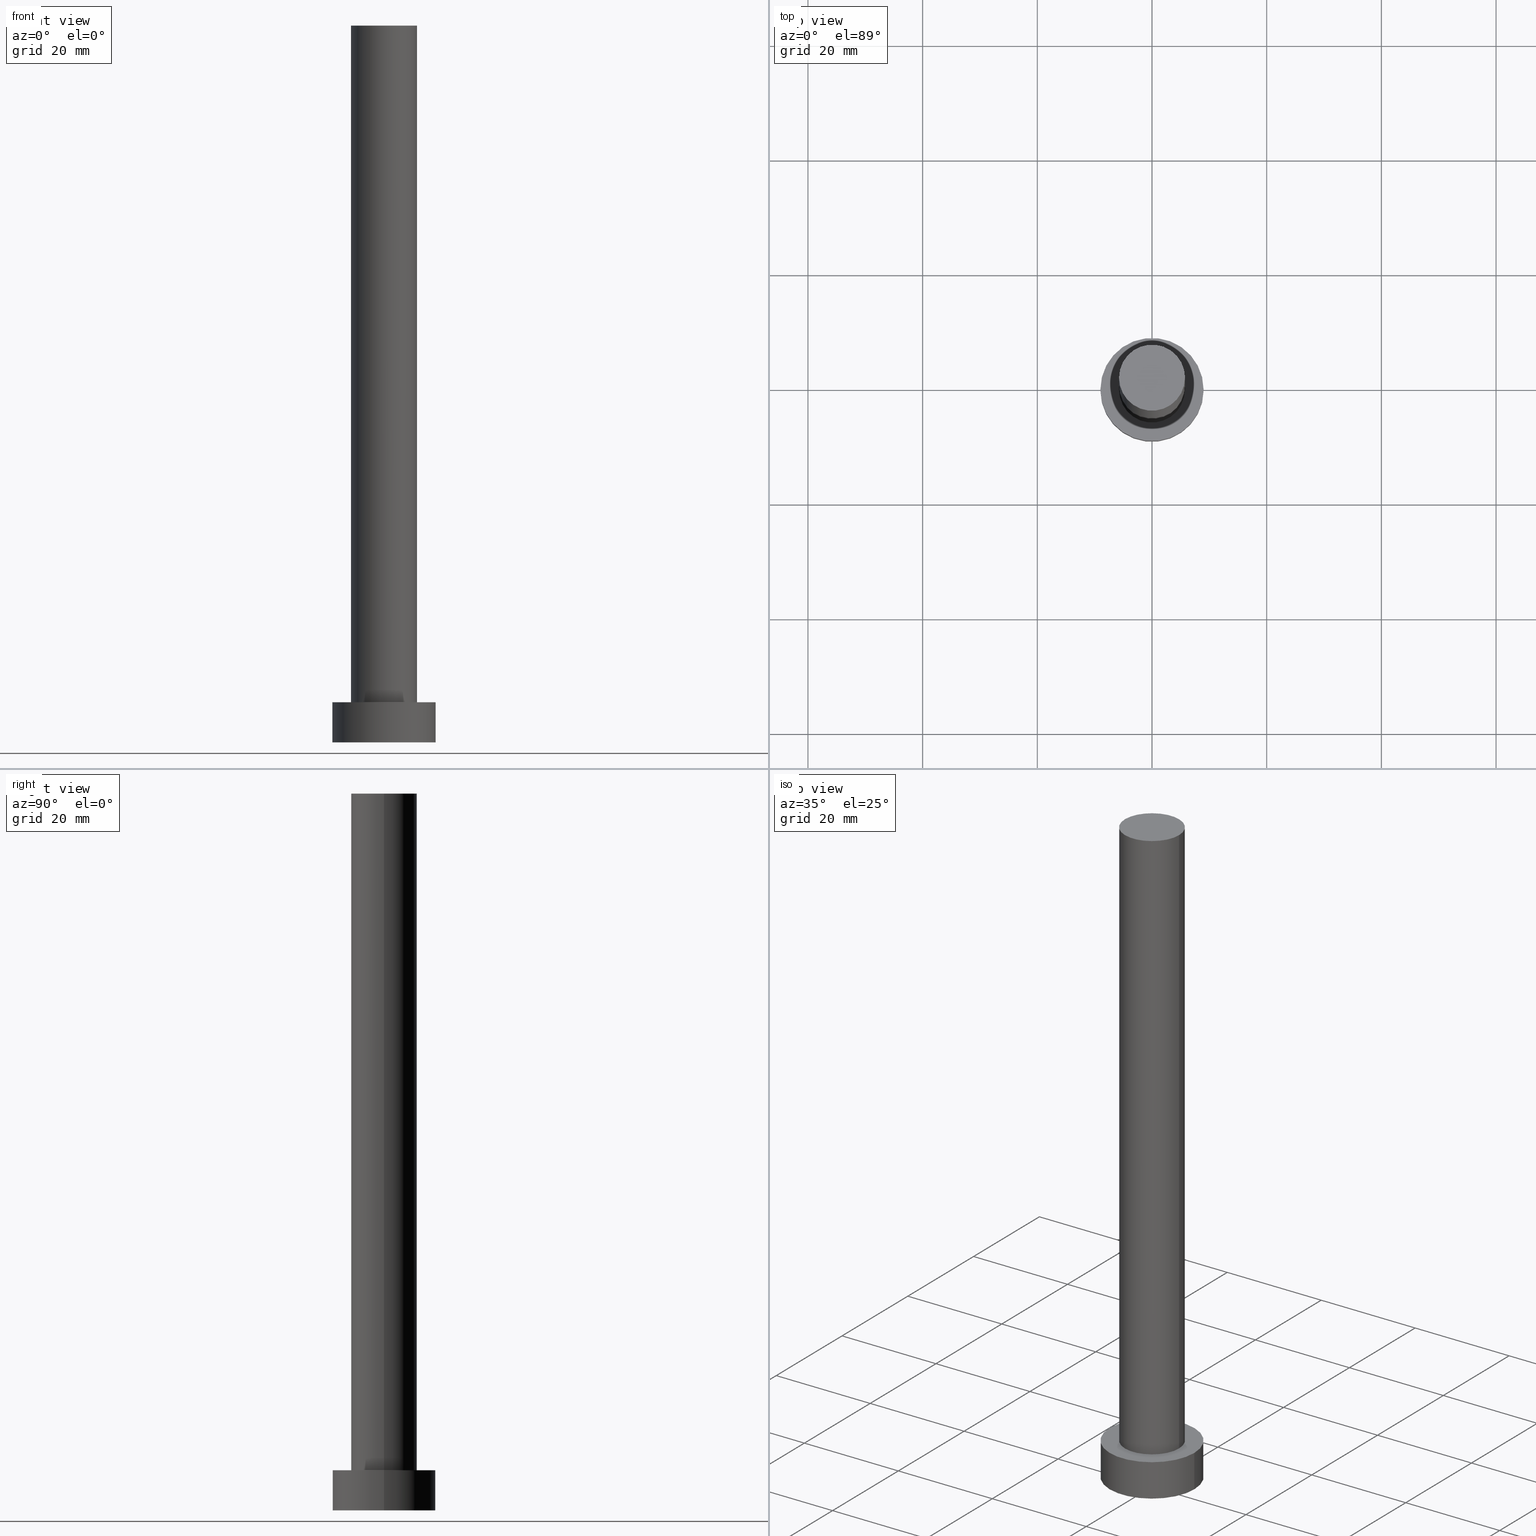
[diagram: canonical four-view strip — front | top / right | iso, engineering-drawing reading convention]
A machine part, canonical four-view strip (front | top / right | iso — engineering-drawing reading convention). The complete STEP part file that produces these views, byte-faithful:
ISO-10303-21;
HEADER;
FILE_DESCRIPTION (( 'STEP AP203' ),
    '1' );
FILE_NAME ('5398.STEP',
    '2023-02-13T12:27:50',
    ( '' ),
    ( '' ),
    'SwSTEP 2.0',
    'SolidWorks 2019',
    '' );
FILE_SCHEMA (( 'CONFIG_CONTROL_DESIGN' ));
ENDSEC;

DATA;
#1 = ORIENTED_EDGE ( 'NONE', *, *, #217, .F. ) ;
#2 = ORIENTED_EDGE ( 'NONE', *, *, #125, .F. ) ;
#3 = CC_DESIGN_APPROVAL ( #16, ( #165 ) ) ;
#4 = EDGE_CURVE ( 'NONE', #95, #42, #116, .T. ) ;
#5 = ORIENTED_EDGE ( 'NONE', *, *, #4, .F. ) ;
#6 = ORIENTED_EDGE ( 'NONE', *, *, #227, .F. ) ;
#7 = PERSON_AND_ORGANIZATION ( #240, #174 ) ;
#8 = AXIS2_PLACEMENT_3D ( 'NONE', #100, #10, #167 ) ;
#9 = AXIS2_PLACEMENT_3D ( 'NONE', #80, #160, #56 ) ;
#10 = DIRECTION ( 'NONE',  ( 0.000000000000000000, 0.000000000000000000, 1.000000000000000000 ) ) ;
#11 = DIRECTION ( 'NONE',  ( 1.000000000000000000, 0.000000000000000000, 0.000000000000000000 ) ) ;
#12 = EDGE_CURVE ( 'NONE', #146, #132, #203, .T. ) ;
#13 = CYLINDRICAL_SURFACE ( 'NONE', #236, 9.000000000000000000 ) ;
#14 = CC_DESIGN_DATE_AND_TIME_ASSIGNMENT ( #87, #179, ( #39 ) ) ;
#15 = COORDINATED_UNIVERSAL_TIME_OFFSET ( 1, 0, .AHEAD. ) ;
#16 = APPROVAL ( #208, 'NEUR�EN�' ) ;
#17 = DIRECTION ( 'NONE',  ( 1.000000000000000000, 0.000000000000000000, 0.000000000000000000 ) ) ;
#18 = CARTESIAN_POINT ( 'NONE',  ( 9.000000000000000000, 1.102182119232617714E-15, 0.000000000000000000 ) ) ;
#19 = ADVANCED_FACE ( 'NONE', ( #140 ), #13, .T. ) ;
#20 = CIRCLE ( 'NONE', #180, 5.750000000000000000 ) ;
#21 = VERTEX_POINT ( 'NONE', #156 ) ;
#22 = EDGE_LOOP ( 'NONE', ( #161, #5, #44, #65 ) ) ;
#23 = PERSON_AND_ORGANIZATION ( #240, #174 ) ;
#24 = ADVANCED_FACE ( 'NONE', ( #229 ), #207, .T. ) ;
#25 = DIRECTION ( 'NONE',  ( 1.000000000000000000, 0.000000000000000000, 0.000000000000000000 ) ) ;
#26 = CARTESIAN_POINT ( 'NONE',  ( 0.000000000000000000, 0.000000000000000000, 0.000000000000000000 ) ) ;
#27 = DIRECTION ( 'NONE',  ( -0.000000000000000000, -0.000000000000000000, -1.000000000000000000 ) ) ;
#28 = AXIS2_PLACEMENT_3D ( 'NONE', #77, #209, #48 ) ;
#29 = DIRECTION ( 'NONE',  ( -0.000000000000000000, -0.000000000000000000, -1.000000000000000000 ) ) ;
#30 = DIRECTION ( 'NONE',  ( 1.000000000000000000, 0.000000000000000000, -0.000000000000000000 ) ) ;
#31 = AXIS2_PLACEMENT_3D ( 'NONE', #235, #215, #43 ) ;
#32 = APPROVAL_ROLE ( '' ) ;
#33 = DIRECTION ( 'NONE',  ( -0.000000000000000000, -0.000000000000000000, -1.000000000000000000 ) ) ;
#34 = PERSON_AND_ORGANIZATION_ROLE ( 'design_supplier' ) ;
#35 = CC_DESIGN_DATE_AND_TIME_ASSIGNMENT ( #164, #99, ( #165 ) ) ;
#36 = DIRECTION ( 'NONE',  ( -0.000000000000000000, -0.000000000000000000, -1.000000000000000000 ) ) ;
#37 = PLANE ( 'NONE',  #115 ) ;
#38 = FACE_BOUND ( 'NONE', #166, .T. ) ;
#39 = PRODUCT_DEFINITION ( 'NEZN�M�', '', #237, #97 ) ;
#40 = PRODUCT_DEFINITION_SHAPE ( 'NONE', 'NONE',  #39 ) ;
#41 = AXIS2_PLACEMENT_3D ( 'NONE', #101, #244, #76 ) ;
#42 = VERTEX_POINT ( 'NONE', #242 ) ;
#43 = DIRECTION ( 'NONE',  ( 1.000000000000000000, 0.000000000000000000, 0.000000000000000000 ) ) ;
#44 = ORIENTED_EDGE ( 'NONE', *, *, #255, .T. ) ;
#45 = ADVANCED_FACE ( 'NONE', ( #114 ), #155, .T. ) ;
#46 = COORDINATED_UNIVERSAL_TIME_OFFSET ( 1, 0, .AHEAD. ) ;
#47 = ORIENTED_EDGE ( 'NONE', *, *, #122, .F. ) ;
#48 = DIRECTION ( 'NONE',  ( 1.000000000000000000, 0.000000000000000000, 0.000000000000000000 ) ) ;
#49 = DIRECTION ( 'NONE',  ( -0.000000000000000000, -0.000000000000000000, -1.000000000000000000 ) ) ;
#50 = PERSON_AND_ORGANIZATION ( #240, #174 ) ;
#51 =( NAMED_UNIT ( * ) SI_UNIT ( $, .STERADIAN. ) SOLID_ANGLE_UNIT ( ) );
#52 = CARTESIAN_POINT ( 'NONE',  ( 0.000000000000000000, 0.000000000000000000, 125.0000000000000000 ) ) ;
#53 = AXIS2_PLACEMENT_3D ( 'NONE', #104, #27, #117 ) ;
#54 = PERSON_AND_ORGANIZATION_ROLE ( 'creator' ) ;
#55 = VECTOR ( 'NONE', #33, 1000.000000000000000 ) ;
#56 = DIRECTION ( 'NONE',  ( 1.000000000000000000, 0.000000000000000000, -0.000000000000000000 ) ) ;
#57 = APPROVAL_DATE_TIME ( #81, #220 ) ;
#58 = CARTESIAN_POINT ( 'NONE',  ( 0.000000000000000000, 0.000000000000000000, 0.000000000000000000 ) ) ;
#59 = APPLICATION_CONTEXT ( 'configuration controlled 3d designs of mechanical parts and assemblies' ) ;
#60 = CARTESIAN_POINT ( 'NONE',  ( 0.000000000000000000, 0.000000000000000000, 7.000000000000000000 ) ) ;
#61 = PERSON_AND_ORGANIZATION_ROLE ( 'creator' ) ;
#62 = EDGE_CURVE ( 'NONE', #42, #147, #188, .T. ) ;
#63 = APPROVAL_STATUS ( 'not_yet_approved' ) ;
#64 = CC_DESIGN_PERSON_AND_ORGANIZATION_ASSIGNMENT ( #232, #61, ( #39 ) ) ;
#65 = ORIENTED_EDGE ( 'NONE', *, *, #217, .T. ) ;
#66 = ORIENTED_EDGE ( 'NONE', *, *, #12, .F. ) ;
#67 = ORIENTED_EDGE ( 'NONE', *, *, #94, .T. ) ;
#68 = ORIENTED_EDGE ( 'NONE', *, *, #142, .F. ) ;
#69 = AXIS2_PLACEMENT_3D ( 'NONE', #200, #216, #25 ) ;
#70 =( GEOMETRIC_REPRESENTATION_CONTEXT ( 3 ) GLOBAL_UNCERTAINTY_ASSIGNED_CONTEXT ( ( #186 ) ) GLOBAL_UNIT_ASSIGNED_CONTEXT ( ( #190, #102, #51 ) ) REPRESENTATION_CONTEXT ( 'NONE', 'WORKASPACE' ) );
#71 = PERSON_AND_ORGANIZATION_ROLE ( 'design_owner' ) ;
#72 = ORIENTED_EDGE ( 'NONE', *, *, #73, .T. ) ;
#73 = EDGE_CURVE ( 'NONE', #147, #90, #124, .T. ) ;
#74 = CARTESIAN_POINT ( 'NONE',  ( -9.000000000000000000, 0.000000000000000000, 0.000000000000000000 ) ) ;
#75 = CC_DESIGN_APPROVAL ( #220, ( #237 ) ) ;
#76 = DIRECTION ( 'NONE',  ( 1.000000000000000000, 0.000000000000000000, 0.000000000000000000 ) ) ;
#77 = CARTESIAN_POINT ( 'NONE',  ( 0.000000000000000000, 0.000000000000000000, 7.000000000000000000 ) ) ;
#78 = CIRCLE ( 'NONE', #248, 5.750000000000000000 ) ;
#79 = AXIS2_PLACEMENT_3D ( 'NONE', #26, #205, #30 ) ;
#80 = CARTESIAN_POINT ( 'NONE',  ( 0.000000000000000000, 0.000000000000000000, 125.0000000000000000 ) ) ;
#81 = DATE_AND_TIME ( #250, #159 ) ;
#82 = CC_DESIGN_PERSON_AND_ORGANIZATION_ASSIGNMENT ( #50, #54, ( #237 ) ) ;
#83 = APPROVAL_STATUS ( 'not_yet_approved' ) ;
#84 = MECHANICAL_CONTEXT ( 'NONE', #171, 'mechanical' ) ;
#85 = CARTESIAN_POINT ( 'NONE',  ( -5.750000000000000000, 0.000000000000000000, 125.0000000000000000 ) ) ;
#86 = APPROVAL_ROLE ( '' ) ;
#87 = DATE_AND_TIME ( #212, #191 ) ;
#88 = ORIENTED_EDGE ( 'NONE', *, *, #125, .T. ) ;
#89 = APPROVAL_PERSON_ORGANIZATION ( #139, #16, #32 ) ;
#90 = VERTEX_POINT ( 'NONE', #74 ) ;
#91 = VECTOR ( 'NONE', #49, 1000.000000000000000 ) ;
#92 = CALENDAR_DATE ( 2023, 13, 2 ) ;
#93 = VERTEX_POINT ( 'NONE', #169 ) ;
#94 = EDGE_CURVE ( 'NONE', #42, #95, #157, .T. ) ;
#95 = VERTEX_POINT ( 'NONE', #153 ) ;
#96 = ORIENTED_EDGE ( 'NONE', *, *, #73, .F. ) ;
#97 = DESIGN_CONTEXT ( 'detailed design', #59, 'design' ) ;
#98 = LOCAL_TIME ( 13, 27, 50.00000000000000000, #15 ) ;
#99 = DATE_TIME_ROLE ( 'classification_date' ) ;
#100 = CARTESIAN_POINT ( 'NONE',  ( 0.000000000000000000, 0.000000000000000000, 0.000000000000000000 ) ) ;
#101 = CARTESIAN_POINT ( 'NONE',  ( 0.000000000000000000, 0.000000000000000000, 7.000000000000000000 ) ) ;
#102 =( NAMED_UNIT ( * ) PLANE_ANGLE_UNIT ( ) SI_UNIT ( $, .RADIAN. ) );
#103 = DIRECTION ( 'NONE',  ( -1.000000000000000000, 0.000000000000000000, 0.000000000000000000 ) ) ;
#104 = CARTESIAN_POINT ( 'NONE',  ( 0.000000000000000000, 0.000000000000000000, 125.0000000000000000 ) ) ;
#105 = DATE_AND_TIME ( #247, #98 ) ;
#106 = SHAPE_DEFINITION_REPRESENTATION ( #40, #211 ) ;
#107 = APPROVAL_DATE_TIME ( #253, #113 ) ;
#108 = APPLICATION_PROTOCOL_DEFINITION ( 'international standard', 'config_control_design', 1994, #171 ) ;
#109 = COORDINATED_UNIVERSAL_TIME_OFFSET ( 1, 0, .AHEAD. ) ;
#110 = MANIFOLD_SOLID_BREP ( 'P�idat vysunut�m3', #218 ) ;
#111 = EDGE_LOOP ( 'NONE', ( #68, #47, #126, #88 ) ) ;
#112 = ORIENTED_EDGE ( 'NONE', *, *, #224, .F. ) ;
#113 = APPROVAL ( #83, 'NEUR�EN�' ) ;
#114 = FACE_OUTER_BOUND ( 'NONE', #181, .T. ) ;
#115 = AXIS2_PLACEMENT_3D ( 'NONE', #193, #249, #230 ) ;
#116 = CIRCLE ( 'NONE', #31, 9.000000000000000000 ) ;
#117 = DIRECTION ( 'NONE',  ( -1.000000000000000000, 0.000000000000000000, 0.000000000000000000 ) ) ;
#118 = DIRECTION ( 'NONE',  ( -1.000000000000000000, 0.000000000000000000, 0.000000000000000000 ) ) ;
#119 = LOCAL_TIME ( 13, 27, 50.00000000000000000, #252 ) ;
#120 = FACE_OUTER_BOUND ( 'NONE', #150, .T. ) ;
#121 = COORDINATED_UNIVERSAL_TIME_OFFSET ( 1, 0, .AHEAD. ) ;
#122 = EDGE_CURVE ( 'NONE', #132, #146, #78, .T. ) ;
#123 = PERSON_AND_ORGANIZATION ( #240, #174 ) ;
#124 = CIRCLE ( 'NONE', #8, 9.000000000000000000 ) ;
#125 = EDGE_CURVE ( 'NONE', #21, #93, #144, .T. ) ;
#126 = ORIENTED_EDGE ( 'NONE', *, *, #224, .T. ) ;
#127 = ORIENTED_EDGE ( 'NONE', *, *, #122, .T. ) ;
#128 = ORIENTED_EDGE ( 'NONE', *, *, #142, .T. ) ;
#129 = CC_DESIGN_PERSON_AND_ORGANIZATION_ASSIGNMENT ( #7, #71, ( #176 ) ) ;
#130 = ORIENTED_EDGE ( 'NONE', *, *, #227, .T. ) ;
#131 = DIRECTION ( 'NONE',  ( 0.000000000000000000, 0.000000000000000000, 1.000000000000000000 ) ) ;
#132 = VERTEX_POINT ( 'NONE', #134 ) ;
#133 = PERSON_AND_ORGANIZATION ( #240, #174 ) ;
#134 = CARTESIAN_POINT ( 'NONE',  ( -5.750000000000000000, 0.000000000000000000, 125.0000000000000000 ) ) ;
#135 = AXIS2_PLACEMENT_3D ( 'NONE', #58, #141, #17 ) ;
#136 = CARTESIAN_POINT ( 'NONE',  ( 0.000000000000000000, 0.000000000000000000, 7.000000000000000000 ) ) ;
#137 = LINE ( 'NONE', #206, #202 ) ;
#138 = FACE_OUTER_BOUND ( 'NONE', #184, .T. ) ;
#139 = PERSON_AND_ORGANIZATION ( #240, #174 ) ;
#140 = FACE_OUTER_BOUND ( 'NONE', #185, .T. ) ;
#141 = DIRECTION ( 'NONE',  ( 0.000000000000000000, 0.000000000000000000, 1.000000000000000000 ) ) ;
#142 = EDGE_CURVE ( 'NONE', #146, #93, #137, .T. ) ;
#143 = CC_DESIGN_PERSON_AND_ORGANIZATION_ASSIGNMENT ( #23, #34, ( #237 ) ) ;
#144 = CIRCLE ( 'NONE', #28, 5.750000000000000000 ) ;
#145 = LOCAL_TIME ( 13, 27, 50.00000000000000000, #46 ) ;
#146 = VERTEX_POINT ( 'NONE', #173 ) ;
#147 = VERTEX_POINT ( 'NONE', #18 ) ;
#148 = PERSON_AND_ORGANIZATION_ROLE ( 'classification_officer' ) ;
#149 = AXIS2_PLACEMENT_3D ( 'NONE', #152, #241, #192 ) ;
#150 = EDGE_LOOP ( 'NONE', ( #199, #67 ) ) ;
#151 = PRODUCT_RELATED_PRODUCT_CATEGORY ( 'detail', '', ( #176 ) ) ;
#152 = CARTESIAN_POINT ( 'NONE',  ( 0.000000000000000000, 0.000000000000000000, 0.000000000000000000 ) ) ;
#153 = CARTESIAN_POINT ( 'NONE',  ( -9.000000000000000000, 0.000000000000000000, 7.000000000000000000 ) ) ;
#154 = DIRECTION ( 'NONE',  ( -0.000000000000000000, -0.000000000000000000, -1.000000000000000000 ) ) ;
#155 = CYLINDRICAL_SURFACE ( 'NONE', #228, 5.750000000000000000 ) ;
#156 = CARTESIAN_POINT ( 'NONE',  ( -5.750000000000000000, 0.000000000000000000, 7.000000000000000000 ) ) ;
#157 = CIRCLE ( 'NONE', #41, 9.000000000000000000 ) ;
#158 = PERSON_AND_ORGANIZATION ( #240, #174 ) ;
#159 = LOCAL_TIME ( 13, 27, 50.00000000000000000, #109 ) ;
#160 = DIRECTION ( 'NONE',  ( 0.000000000000000000, 0.000000000000000000, 1.000000000000000000 ) ) ;
#161 = ORIENTED_EDGE ( 'NONE', *, *, #62, .F. ) ;
#162 = CIRCLE ( 'NONE', #135, 9.000000000000000000 ) ;
#163 = ORIENTED_EDGE ( 'NONE', *, *, #94, .F. ) ;
#164 = DATE_AND_TIME ( #92, #145 ) ;
#165 = SECURITY_CLASSIFICATION ( '', '', #170 ) ;
#166 = EDGE_LOOP ( 'NONE', ( #2, #6 ) ) ;
#167 = DIRECTION ( 'NONE',  ( 1.000000000000000000, 0.000000000000000000, 0.000000000000000000 ) ) ;
#168 = ADVANCED_FACE ( 'NONE', ( #38, #120 ), #37, .T. ) ;
#169 = CARTESIAN_POINT ( 'NONE',  ( 5.750000000000000000, 7.041719095097280880E-16, 7.000000000000000000 ) ) ;
#170 = SECURITY_CLASSIFICATION_LEVEL ( 'unclassified' ) ;
#171 = APPLICATION_CONTEXT ( 'configuration controlled 3d designs of mechanical parts and assemblies' ) ;
#172 = APPROVAL_DATE_TIME ( #105, #16 ) ;
#173 = CARTESIAN_POINT ( 'NONE',  ( 5.750000000000000000, 7.041719095097280880E-16, 125.0000000000000000 ) ) ;
#174 = ORGANIZATION ( 'NEUR�EN�', 'NEUR�EN�', '' ) ;
#175 = ADVANCED_FACE ( 'NONE', ( #210 ), #254, .T. ) ;
#176 = PRODUCT ( '5398', '5398', '', ( #84 ) ) ;
#177 = CYLINDRICAL_SURFACE ( 'NONE', #183, 9.000000000000000000 ) ;
#178 = APPLICATION_PROTOCOL_DEFINITION ( 'international standard', 'config_control_design', 1994, #59 ) ;
#179 = DATE_TIME_ROLE ( 'creation_date' ) ;
#180 = AXIS2_PLACEMENT_3D ( 'NONE', #136, #131, #11 ) ;
#181 = EDGE_LOOP ( 'NONE', ( #66, #128, #130, #112 ) ) ;
#182 = CC_DESIGN_PERSON_AND_ORGANIZATION_ASSIGNMENT ( #133, #148, ( #165 ) ) ;
#183 = AXIS2_PLACEMENT_3D ( 'NONE', #60, #36, #118 ) ;
#184 = EDGE_LOOP ( 'NONE', ( #1, #96 ) ) ;
#185 = EDGE_LOOP ( 'NONE', ( #163, #219, #72, #221 ) ) ;
#186 = UNCERTAINTY_MEASURE_WITH_UNIT (LENGTH_MEASURE( 1.000000000000000082E-05 ), #190, 'distance_accuracy_value', 'NONE');
#187 = CC_DESIGN_APPROVAL ( #113, ( #39 ) ) ;
#188 = LINE ( 'NONE', #246, #197 ) ;
#189 = PLANE ( 'NONE',  #79 ) ;
#190 =( LENGTH_UNIT ( ) NAMED_UNIT ( * ) SI_UNIT ( .MILLI., .METRE. ) );
#191 = LOCAL_TIME ( 13, 27, 50.00000000000000000, #121 ) ;
#192 = DIRECTION ( 'NONE',  ( 1.000000000000000000, 0.000000000000000000, 0.000000000000000000 ) ) ;
#193 = CARTESIAN_POINT ( 'NONE',  ( 0.000000000000000000, 0.000000000000000000, 7.000000000000000000 ) ) ;
#194 = CALENDAR_DATE ( 2023, 13, 2 ) ;
#195 = APPROVAL_PERSON_ORGANIZATION ( #158, #113, #86 ) ;
#196 = APPROVAL_ROLE ( '' ) ;
#197 = VECTOR ( 'NONE', #204, 1000.000000000000000 ) ;
#198 = CC_DESIGN_SECURITY_CLASSIFICATION ( #165, ( #237 ) ) ;
#199 = ORIENTED_EDGE ( 'NONE', *, *, #4, .T. ) ;
#200 = CARTESIAN_POINT ( 'NONE',  ( 0.000000000000000000, 0.000000000000000000, 125.0000000000000000 ) ) ;
#201 = CARTESIAN_POINT ( 'NONE',  ( 0.000000000000000000, 0.000000000000000000, 7.000000000000000000 ) ) ;
#202 = VECTOR ( 'NONE', #231, 1000.000000000000000 ) ;
#203 = CIRCLE ( 'NONE', #69, 5.750000000000000000 ) ;
#204 = DIRECTION ( 'NONE',  ( -0.000000000000000000, -0.000000000000000000, -1.000000000000000000 ) ) ;
#205 = DIRECTION ( 'NONE',  ( 0.000000000000000000, 0.000000000000000000, 1.000000000000000000 ) ) ;
#206 = CARTESIAN_POINT ( 'NONE',  ( 5.750000000000000000, 7.041719095097280880E-16, 125.0000000000000000 ) ) ;
#207 = CYLINDRICAL_SURFACE ( 'NONE', #53, 5.750000000000000000 ) ;
#208 = APPROVAL_STATUS ( 'not_yet_approved' ) ;
#209 = DIRECTION ( 'NONE',  ( 0.000000000000000000, 0.000000000000000000, 1.000000000000000000 ) ) ;
#210 = FACE_OUTER_BOUND ( 'NONE', #238, .T. ) ;
#211 = ADVANCED_BREP_SHAPE_REPRESENTATION ( '5398', ( #110, #149 ), #70 ) ;
#212 = CALENDAR_DATE ( 2023, 13, 2 ) ;
#213 = ADVANCED_FACE ( 'NONE', ( #233 ), #177, .T. ) ;
#214 = ORIENTED_EDGE ( 'NONE', *, *, #12, .T. ) ;
#215 = DIRECTION ( 'NONE',  ( 0.000000000000000000, 0.000000000000000000, 1.000000000000000000 ) ) ;
#216 = DIRECTION ( 'NONE',  ( 0.000000000000000000, 0.000000000000000000, 1.000000000000000000 ) ) ;
#217 = EDGE_CURVE ( 'NONE', #90, #147, #162, .T. ) ;
#218 = CLOSED_SHELL ( 'NONE', ( #45, #19, #213, #168, #234, #24, #175 ) ) ;
#219 = ORIENTED_EDGE ( 'NONE', *, *, #62, .T. ) ;
#220 = APPROVAL ( #63, 'NEUR�EN�' ) ;
#221 = ORIENTED_EDGE ( 'NONE', *, *, #255, .F. ) ;
#222 = DIRECTION ( 'NONE',  ( 0.000000000000000000, 0.000000000000000000, 1.000000000000000000 ) ) ;
#223 = APPROVAL_PERSON_ORGANIZATION ( #123, #220, #196 ) ;
#224 = EDGE_CURVE ( 'NONE', #132, #21, #251, .T. ) ;
#225 = DIRECTION ( 'NONE',  ( 1.000000000000000000, 0.000000000000000000, 0.000000000000000000 ) ) ;
#226 = CARTESIAN_POINT ( 'NONE',  ( 0.000000000000000000, 0.000000000000000000, 125.0000000000000000 ) ) ;
#227 = EDGE_CURVE ( 'NONE', #93, #21, #20, .T. ) ;
#228 = AXIS2_PLACEMENT_3D ( 'NONE', #226, #154, #103 ) ;
#229 = FACE_OUTER_BOUND ( 'NONE', #111, .T. ) ;
#230 = DIRECTION ( 'NONE',  ( 1.000000000000000000, 0.000000000000000000, -0.000000000000000000 ) ) ;
#231 = DIRECTION ( 'NONE',  ( -0.000000000000000000, -0.000000000000000000, -1.000000000000000000 ) ) ;
#232 = PERSON_AND_ORGANIZATION ( #240, #174 ) ;
#233 = FACE_OUTER_BOUND ( 'NONE', #22, .T. ) ;
#234 = ADVANCED_FACE ( 'NONE', ( #138 ), #189, .F. ) ;
#235 = CARTESIAN_POINT ( 'NONE',  ( 0.000000000000000000, 0.000000000000000000, 7.000000000000000000 ) ) ;
#236 = AXIS2_PLACEMENT_3D ( 'NONE', #201, #29, #239 ) ;
#237 = PRODUCT_DEFINITION_FORMATION_WITH_SPECIFIED_SOURCE ( 'LIBOVOLN�', '', #176, .NOT_KNOWN. ) ;
#238 = EDGE_LOOP ( 'NONE', ( #127, #214 ) ) ;
#239 = DIRECTION ( 'NONE',  ( -1.000000000000000000, 0.000000000000000000, 0.000000000000000000 ) ) ;
#240 = PERSON ( 'NEUR�EN�', 'NEUR�EN�', 'NEUR�EN�', ('NEUR�EN�'), ('NEUR�EN�'), ('NEUR�EN�') ) ;
#241 = DIRECTION ( 'NONE',  ( 0.000000000000000000, 0.000000000000000000, 1.000000000000000000 ) ) ;
#242 = CARTESIAN_POINT ( 'NONE',  ( 9.000000000000000000, 1.102182119232617714E-15, 7.000000000000000000 ) ) ;
#243 = CARTESIAN_POINT ( 'NONE',  ( -9.000000000000000000, 0.000000000000000000, 7.000000000000000000 ) ) ;
#244 = DIRECTION ( 'NONE',  ( 0.000000000000000000, 0.000000000000000000, 1.000000000000000000 ) ) ;
#245 = LINE ( 'NONE', #243, #55 ) ;
#246 = CARTESIAN_POINT ( 'NONE',  ( 9.000000000000000000, 1.102182119232617714E-15, 7.000000000000000000 ) ) ;
#247 = CALENDAR_DATE ( 2023, 13, 2 ) ;
#248 = AXIS2_PLACEMENT_3D ( 'NONE', #52, #222, #225 ) ;
#249 = DIRECTION ( 'NONE',  ( 0.000000000000000000, 0.000000000000000000, 1.000000000000000000 ) ) ;
#250 = CALENDAR_DATE ( 2023, 13, 2 ) ;
#251 = LINE ( 'NONE', #85, #91 ) ;
#252 = COORDINATED_UNIVERSAL_TIME_OFFSET ( 1, 0, .AHEAD. ) ;
#253 = DATE_AND_TIME ( #194, #119 ) ;
#254 = PLANE ( 'NONE',  #9 ) ;
#255 = EDGE_CURVE ( 'NONE', #95, #90, #245, .T. ) ;
ENDSEC;
END-ISO-10303-21;
